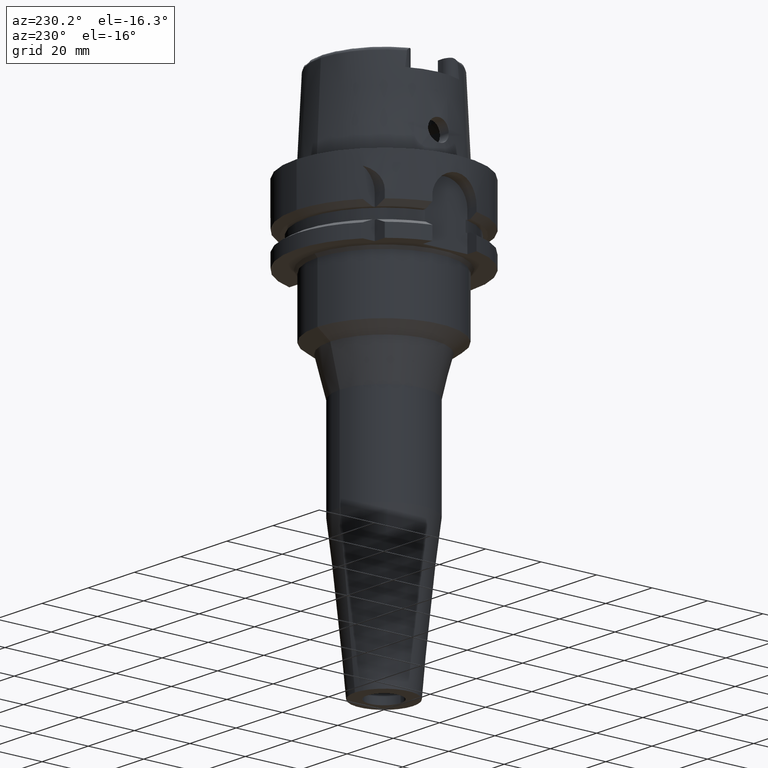
[diagram: clean part render]
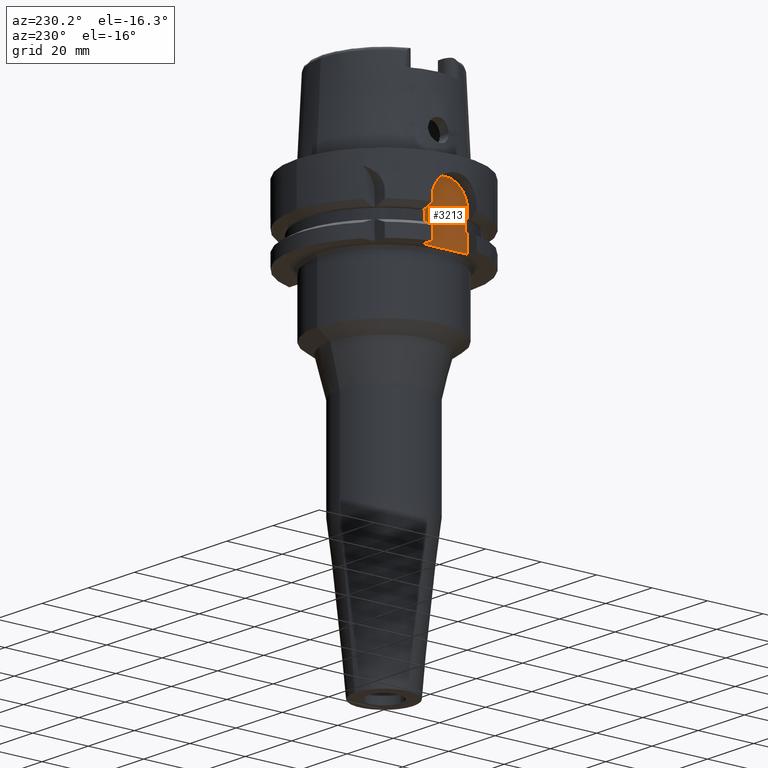
[diagram: same view with one face highlighted and labeled with its STEP entity id]
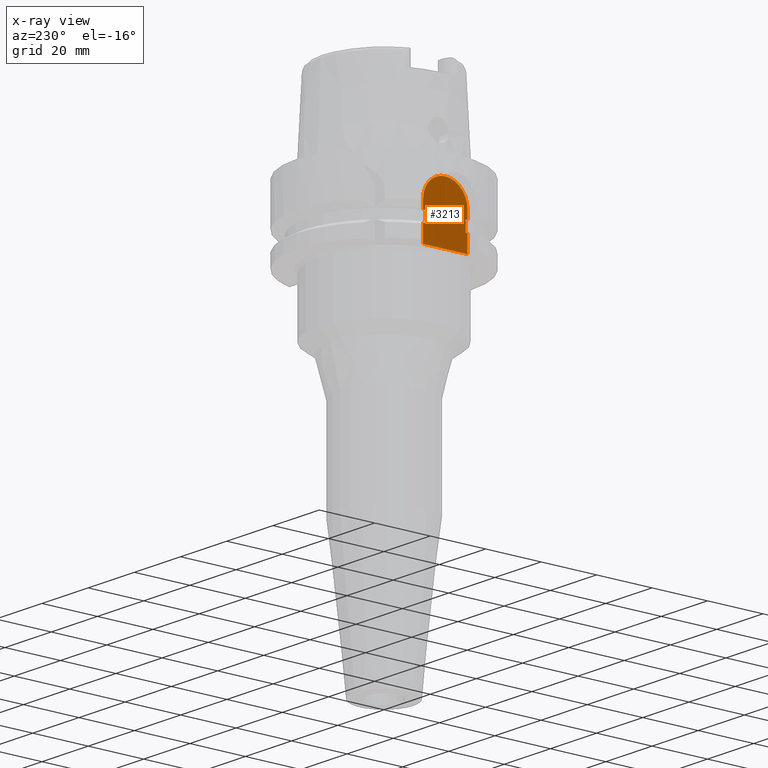
[diagram: x-ray of the same camera — body ghosted, the highlighted face saturated]
A machine part, auxiliary view. The second image highlights one B-rep face of the part: STEP entity #3213.
The next image is the same camera in x-ray: the body ghosted, the highlighted face saturated — about 0% of this face is hidden behind the body in this view.
In plain terms, the highlighted planar face has unit normal (1, 0, 0).
Its self-contained STEP definition (entity closure, byte-faithful):
#834=DIRECTION('',(0.E0,0.E0,-1.E0));
#835=VECTOR('',#834,3.125E0);
#836=CARTESIAN_POINT('',(-2.65E1,8.E0,-1.3E1));
#837=LINE('',#836,#835);
#876=DIRECTION('',(0.E0,0.E0,1.E0));
#877=VECTOR('',#876,3.125E0);
#878=CARTESIAN_POINT('',(-2.65E1,-8.E0,-1.6125E1));
#879=LINE('',#878,#877);
#929=DIRECTION('',(0.E0,1.E0,0.E0));
#930=VECTOR('',#929,1.6E1);
#931=CARTESIAN_POINT('',(-2.65E1,-8.E0,-2.6E1));
#932=LINE('',#931,#930);
#936=DIRECTION('',(-5.998158823386E-14,1.E0,1.090574331525E-14));
#937=VECTOR('',#936,6.515307716501E-1);
#938=CARTESIAN_POINT('',(-2.65E1,7.348469228350E0,-1.6125E1));
#939=LINE('',#938,#937);
#943=CARTESIAN_POINT('',(-2.65E1,0.E0,-1.3E1));
#944=DIRECTION('',(1.E0,0.E0,0.E0));
#945=DIRECTION('',(0.E0,1.E0,0.E0));
#946=AXIS2_PLACEMENT_3D('',#943,#944,#945);
#951=CARTESIAN_POINT('',(-2.65E1,0.E0,-1.3E1));
#952=DIRECTION('',(1.E0,0.E0,0.E0));
#953=DIRECTION('',(0.E0,0.E0,1.E0));
#954=AXIS2_PLACEMENT_3D('',#951,#952,#953);
#959=DIRECTION('',(5.998158823386E-14,1.E0,-1.090574331525E-14));
#960=VECTOR('',#959,6.515307716501E-1);
#961=CARTESIAN_POINT('',(-2.65E1,-8.E0,-1.6125E1));
#962=LINE('',#961,#960);
#1184=DIRECTION('',(0.E0,0.E0,1.E0));
#1185=VECTOR('',#1184,6.125E0);
#1186=CARTESIAN_POINT('',(-2.65E1,-8.E0,-2.6E1));
#1187=LINE('',#1186,#1185);
#1208=DIRECTION('',(5.998158823386E-14,1.E0,-1.090574331525E-14));
#1209=VECTOR('',#1208,6.515307716501E-1);
#1210=CARTESIAN_POINT('',(-2.65E1,-8.E0,-1.9875E1));
#1211=LINE('',#1210,#1209);
#1254=DIRECTION('',(0.E0,0.E0,1.E0));
#1255=VECTOR('',#1254,3.75E0);
#1256=CARTESIAN_POINT('',(-2.65E1,-7.348469228350E0,-1.9875E1));
#1257=LINE('',#1256,#1255);
#1438=DIRECTION('',(0.E0,0.E0,-1.E0));
#1439=VECTOR('',#1438,3.75E0);
#1440=CARTESIAN_POINT('',(-2.65E1,7.348469228350E0,-1.6125E1));
#1441=LINE('',#1440,#1439);
#1491=DIRECTION('',(-5.998158823386E-14,1.E0,1.090574331525E-14));
#1492=VECTOR('',#1491,6.515307716501E-1);
#1493=CARTESIAN_POINT('',(-2.65E1,7.348469228350E0,-1.9875E1));
#1494=LINE('',#1493,#1492);
#1556=DIRECTION('',(0.E0,0.E0,-1.E0));
#1557=VECTOR('',#1556,6.125E0);
#1558=CARTESIAN_POINT('',(-2.65E1,8.E0,-1.9875E1));
#1559=LINE('',#1558,#1557);
#2472=CARTESIAN_POINT('',(-2.65E1,8.E0,-2.6E1));
#2473=VERTEX_POINT('',#2472);
#2474=CARTESIAN_POINT('',(-2.65E1,-8.E0,-2.6E1));
#2475=VERTEX_POINT('',#2474);
#2518=CARTESIAN_POINT('',(-2.65E1,-8.E0,-1.9875E1));
#2519=VERTEX_POINT('',#2518);
#2522=CARTESIAN_POINT('',(-2.65E1,-8.E0,-1.6125E1));
#2524=VERTEX_POINT('',#2522);
#2526=CARTESIAN_POINT('',(-2.65E1,-8.E0,-1.3E1));
#2527=VERTEX_POINT('',#2526);
#2532=CARTESIAN_POINT('',(-2.65E1,8.E0,-1.9875E1));
#2533=VERTEX_POINT('',#2532);
#2534=CARTESIAN_POINT('',(-2.65E1,7.348469228350E0,-1.9875E1));
#2535=VERTEX_POINT('',#2534);
#2536=CARTESIAN_POINT('',(-2.65E1,7.348469228350E0,-1.6125E1));
#2537=VERTEX_POINT('',#2536);
#2538=CARTESIAN_POINT('',(-2.65E1,8.E0,-1.6125E1));
#2539=VERTEX_POINT('',#2538);
#2540=CARTESIAN_POINT('',(-2.65E1,8.E0,-1.3E1));
#2541=VERTEX_POINT('',#2540);
#2542=CARTESIAN_POINT('',(-2.65E1,0.E0,-5.E0));
#2543=VERTEX_POINT('',#2542);
#2544=CARTESIAN_POINT('',(-2.65E1,-7.348469228350E0,-1.6125E1));
#2545=VERTEX_POINT('',#2544);
#2546=CARTESIAN_POINT('',(-2.65E1,-7.348469228350E0,-1.9875E1));
#2547=VERTEX_POINT('',#2546);
#3186=CARTESIAN_POINT('',(-2.65E1,0.E0,0.E0));
#3187=DIRECTION('',(1.E0,0.E0,0.E0));
#3188=DIRECTION('',(0.E0,0.E0,1.E0));
#3189=AXIS2_PLACEMENT_3D('',#3186,#3187,#3188);
#3190=PLANE('',#3189);
#3192=ORIENTED_EDGE('',*,*,#3191,.T.);
#3194=ORIENTED_EDGE('',*,*,#3193,.F.);
#3196=ORIENTED_EDGE('',*,*,#3195,.F.);
#3198=ORIENTED_EDGE('',*,*,#3197,.F.);
#3199=ORIENTED_EDGE('',*,*,#3060,.T.);
#3200=ORIENTED_EDGE('',*,*,#3126,.F.);
#3201=ORIENTED_EDGE('',*,*,#3141,.T.);
#3202=ORIENTED_EDGE('',*,*,#3139,.T.);
#3203=ORIENTED_EDGE('',*,*,#3154,.F.);
#3204=ORIENTED_EDGE('',*,*,#3168,.T.);
#3206=ORIENTED_EDGE('',*,*,#3205,.F.);
#3208=ORIENTED_EDGE('',*,*,#3207,.F.);
#3210=ORIENTED_EDGE('',*,*,#3209,.F.);
#3211=EDGE_LOOP('',(#3192,#3194,#3196,#3198,#3199,#3200,#3201,#3202,#3203,#3204,
#3206,#3208,#3210));
#3212=FACE_OUTER_BOUND('',#3211,.F.);
#947=CIRCLE('',#946,8.E0);
#955=CIRCLE('',#954,8.E0);
#3060=EDGE_CURVE('',#2537,#2539,#939,.T.);
#3126=EDGE_CURVE('',#2541,#2539,#837,.T.);
#3139=EDGE_CURVE('',#2543,#2527,#955,.T.);
#3141=EDGE_CURVE('',#2541,#2543,#947,.T.);
#3154=EDGE_CURVE('',#2524,#2527,#879,.T.);
#3168=EDGE_CURVE('',#2524,#2545,#962,.T.);
#3191=EDGE_CURVE('',#2475,#2473,#932,.T.);
#3193=EDGE_CURVE('',#2533,#2473,#1559,.T.);
#3195=EDGE_CURVE('',#2535,#2533,#1494,.T.);
#3197=EDGE_CURVE('',#2537,#2535,#1441,.T.);
#3205=EDGE_CURVE('',#2547,#2545,#1257,.T.);
#3207=EDGE_CURVE('',#2519,#2547,#1211,.T.);
#3209=EDGE_CURVE('',#2475,#2519,#1187,.T.);
#3213=ADVANCED_FACE('',(#3212),#3190,.F.);